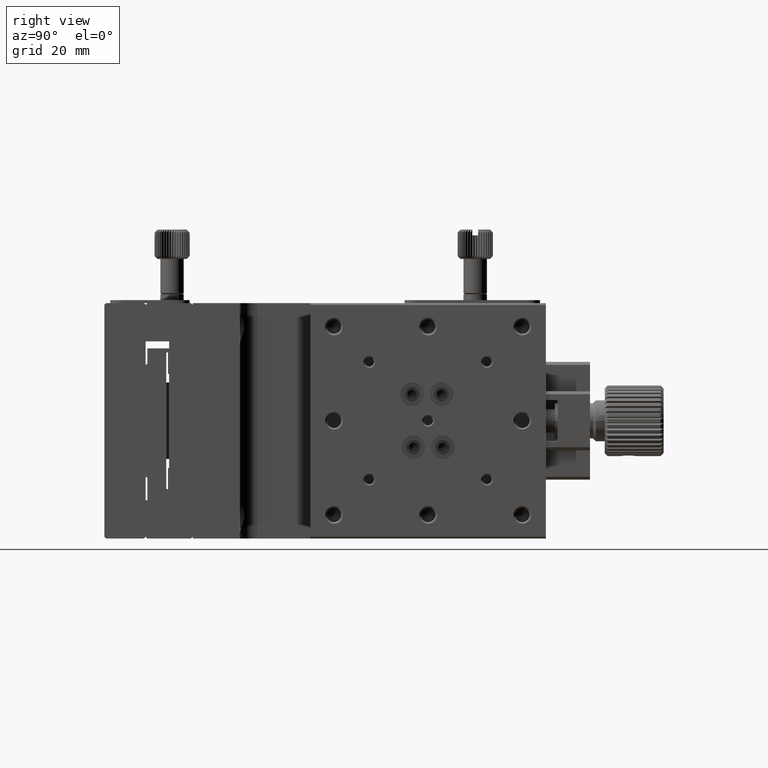
[diagram: clean part render]
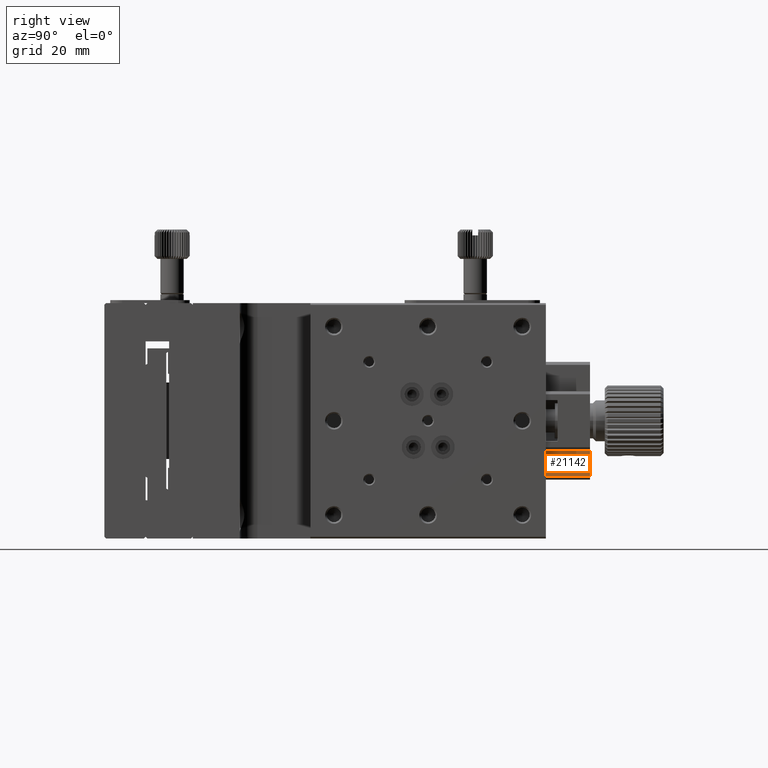
[diagram: same view with one face highlighted and labeled with its STEP entity id]
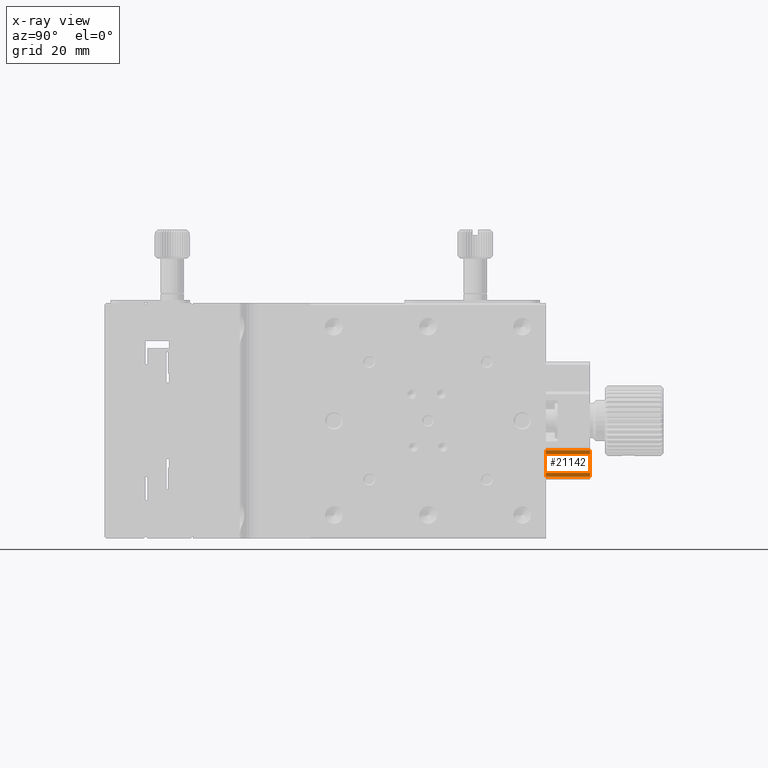
[diagram: x-ray of the same camera — body ghosted, the highlighted face saturated]
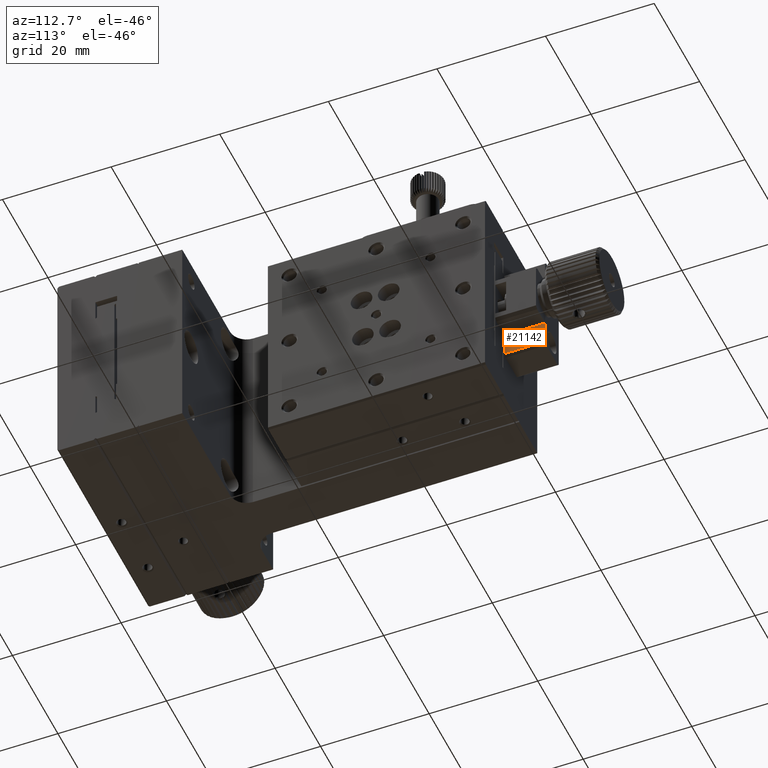
[diagram: same view with one face highlighted and labeled with its STEP entity id]
A machine part, right view. The second image highlights one B-rep face of the part: STEP entity #21142.
The next image is the same camera in x-ray: the body ghosted, the highlighted face saturated — about 0% of this face is hidden behind the body in this view.
A second angle (auxiliary view) of the same face is appended — the face is thin or edge-on in the first view.
In plain terms, the highlighted planar face has unit normal (1, 0, -0).
Its self-contained STEP definition (entity closure, byte-faithful):
#997 = VERTEX_POINT ( 'NONE', #11602 ) ;
#1695 = CARTESIAN_POINT ( 'NONE',  ( 22.50000000000000000, 67.50000000000000000, -29.50000000000000000 ) ) ;
#3662 = LINE ( 'NONE', #14324, #20581 ) ;
#4779 = EDGE_LOOP ( 'NONE', ( #33306, #10114, #33911, #10775 ) ) ;
#5086 = CARTESIAN_POINT ( 'NONE',  ( 22.50000000000000000, 60.00000000000000000, -24.99999999999999645 ) ) ;
#5545 = VERTEX_POINT ( 'NONE', #32521 ) ;
#6950 = DIRECTION ( 'NONE',  ( 0.000000000000000000, 0.000000000000000000, 1.000000000000000000 ) ) ;
#9356 = LINE ( 'NONE', #20369, #21776 ) ;
#9460 = PLANE ( 'NONE',  #16251 ) ;
#9997 = DIRECTION ( 'NONE',  ( -0.000000000000000000, 1.000000000000000000, -0.000000000000000000 ) ) ;
#10114 = ORIENTED_EDGE ( 'NONE', *, *, #13427, .F. ) ;
#10775 = ORIENTED_EDGE ( 'NONE', *, *, #33270, .T. ) ;
#11435 = EDGE_CURVE ( 'NONE', #19076, #5545, #3662, .T. ) ;
#11602 = CARTESIAN_POINT ( 'NONE',  ( 22.50000000000000000, 67.50000000000000000, -24.99999999999999645 ) ) ;
#13222 = LINE ( 'NONE', #1695, #21094 ) ;
#13427 = EDGE_CURVE ( 'NONE', #19076, #997, #9356, .T. ) ;
#14324 = CARTESIAN_POINT ( 'NONE',  ( 22.50000000000000000, 60.00000000000000000, 4.898587196589409870E-15 ) ) ;
#16251 = AXIS2_PLACEMENT_3D ( 'NONE', #31382, #23346, #32076 ) ;
#17728 = DIRECTION ( 'NONE',  ( 0.000000000000000000, 0.000000000000000000, -1.000000000000000000 ) ) ;
#19076 = VERTEX_POINT ( 'NONE', #5086 ) ;
#19876 = CARTESIAN_POINT ( 'NONE',  ( 22.50000000000000000, 67.50000000000000000, -29.50000000000000000 ) ) ;
#20369 = CARTESIAN_POINT ( 'NONE',  ( 22.50000000000000000, 67.50000000000000000, -24.99999999999999645 ) ) ;
#20581 = VECTOR ( 'NONE', #17728, 1000.000000000000000 ) ;
#21094 = VECTOR ( 'NONE', #9997, 1000.000000000000000 ) ;
#21142 = ADVANCED_FACE ( 'NONE', ( #26547 ), #9460, .T. ) ;
#21776 = VECTOR ( 'NONE', #22902, 1000.000000000000000 ) ;
#22902 = DIRECTION ( 'NONE',  ( 0.000000000000000000, 1.000000000000000000, 0.000000000000000000 ) ) ;
#23346 = DIRECTION ( 'NONE',  ( 1.000000000000000000, 0.000000000000000000, -0.000000000000000000 ) ) ;
#23377 = CARTESIAN_POINT ( 'NONE',  ( 22.50000000000000000, 67.50000000000000000, -29.50000000000000000 ) ) ;
#25269 = VECTOR ( 'NONE', #6950, 1000.000000000000000 ) ;
#26065 = LINE ( 'NONE', #23377, #25269 ) ;
#26449 = EDGE_CURVE ( 'NONE', #28231, #997, #26065, .T. ) ;
#26547 = FACE_OUTER_BOUND ( 'NONE', #4779, .T. ) ;
#28231 = VERTEX_POINT ( 'NONE', #19876 ) ;
#31382 = CARTESIAN_POINT ( 'NONE',  ( 22.50000000000000000, 67.50000000000000000, -29.50000000000000000 ) ) ;
#32076 = DIRECTION ( 'NONE',  ( 0.000000000000000000, 0.000000000000000000, 1.000000000000000000 ) ) ;
#32521 = CARTESIAN_POINT ( 'NONE',  ( 22.50000000000000000, 60.00000000000000000, -29.49999999999999645 ) ) ;
#33270 = EDGE_CURVE ( 'NONE', #5545, #28231, #13222, .T. ) ;
#33306 = ORIENTED_EDGE ( 'NONE', *, *, #26449, .T. ) ;
#33911 = ORIENTED_EDGE ( 'NONE', *, *, #11435, .T. ) ;